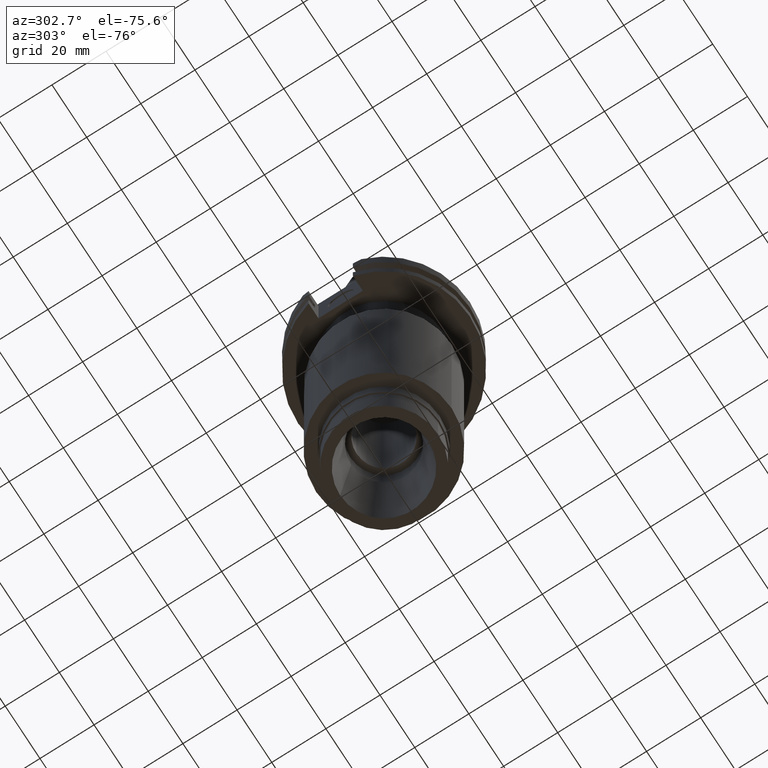
[diagram: clean part render]
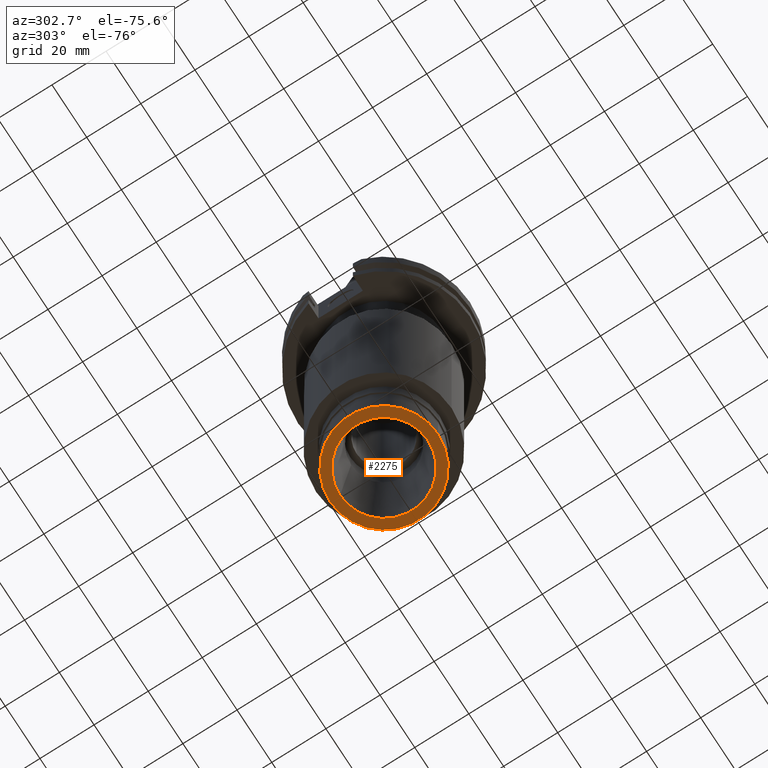
[diagram: same view with one face highlighted and labeled with its STEP entity id]
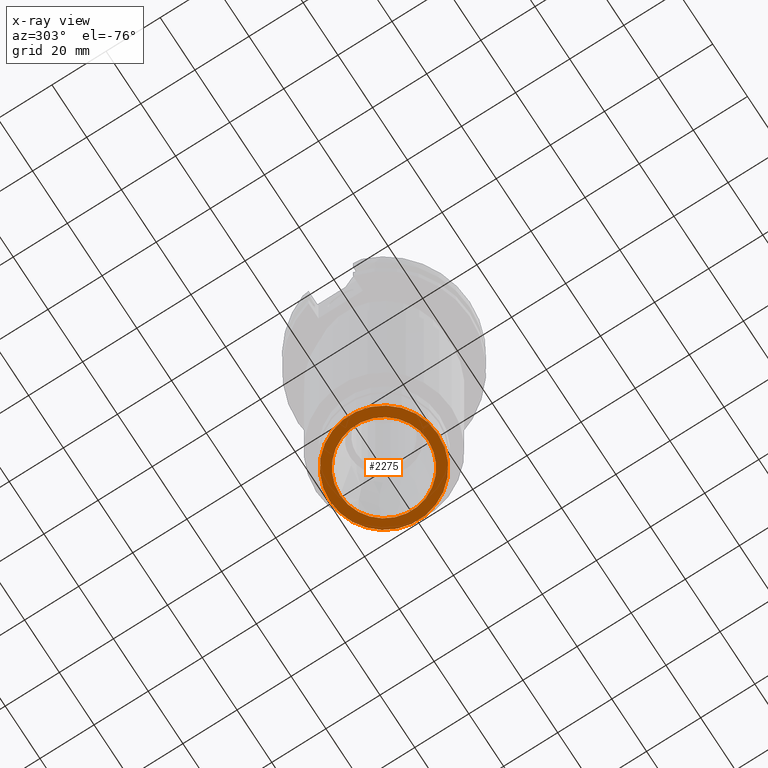
[diagram: x-ray of the same camera — body ghosted, the highlighted face saturated]
A machine part, auxiliary view. The second image highlights one B-rep face of the part: STEP entity #2275.
The next image is the same camera in x-ray: the body ghosted, the highlighted face saturated — about 0% of this face is hidden behind the body in this view.
In plain terms, the highlighted planar face has unit normal (0, 0, -1).
Its self-contained STEP definition (entity closure, byte-faithful):
#1014=CARTESIAN_POINT('',(0.E0,2.188841840286E-14,-1.414E2));
#1015=DIRECTION('',(0.E0,0.E0,1.E0));
#1016=DIRECTION('',(0.E0,-1.E0,0.E0));
#1017=AXIS2_PLACEMENT_3D('',#1014,#1015,#1016);
#1022=CARTESIAN_POINT('',(0.E0,2.188841840286E-14,-1.414E2));
#1023=DIRECTION('',(0.E0,0.E0,1.E0));
#1024=DIRECTION('',(0.E0,1.E0,0.E0));
#1025=AXIS2_PLACEMENT_3D('',#1022,#1023,#1024);
#1030=CARTESIAN_POINT('',(0.E0,0.E0,-1.414E2));
#1031=DIRECTION('',(0.E0,0.E0,-1.E0));
#1032=DIRECTION('',(0.E0,-1.E0,0.E0));
#1033=AXIS2_PLACEMENT_3D('',#1030,#1031,#1032);
#1038=CARTESIAN_POINT('',(0.E0,0.E0,-1.414E2));
#1039=DIRECTION('',(0.E0,0.E0,-1.E0));
#1040=DIRECTION('',(0.E0,1.E0,0.E0));
#1041=AXIS2_PLACEMENT_3D('',#1038,#1039,#1040);
#1318=CARTESIAN_POINT('',(0.E0,1.625002214494E1,-1.414E2));
#1319=VERTEX_POINT('',#1318);
#1320=CARTESIAN_POINT('',(0.E0,-1.625002214494E1,-1.414E2));
#1321=VERTEX_POINT('',#1320);
#1322=CARTESIAN_POINT('',(0.E0,-2.E1,-1.414E2));
#1323=CARTESIAN_POINT('',(0.E0,2.E1,-1.414E2));
#1324=VERTEX_POINT('',#1322);
#1325=VERTEX_POINT('',#1323);
#2260=CARTESIAN_POINT('',(0.E0,0.E0,-1.414E2));
#2261=DIRECTION('',(0.E0,0.E0,-1.E0));
#2262=DIRECTION('',(0.E0,-1.E0,0.E0));
#2263=AXIS2_PLACEMENT_3D('',#2260,#2261,#2262);
#2264=PLANE('',#2263);
#2265=ORIENTED_EDGE('',*,*,#2253,.T.);
#2266=ORIENTED_EDGE('',*,*,#2242,.T.);
#2267=EDGE_LOOP('',(#2265,#2266));
#2268=FACE_OUTER_BOUND('',#2267,.F.);
#2270=ORIENTED_EDGE('',*,*,#2269,.T.);
#2272=ORIENTED_EDGE('',*,*,#2271,.T.);
#2273=EDGE_LOOP('',(#2270,#2272));
#2274=FACE_BOUND('',#2273,.F.);
#1018=CIRCLE('',#1017,2.E1);
#1026=CIRCLE('',#1025,2.E1);
#1034=CIRCLE('',#1033,1.625002214493E1);
#1042=CIRCLE('',#1041,1.625002214493E1);
#2242=EDGE_CURVE('',#1325,#1324,#1026,.T.);
#2253=EDGE_CURVE('',#1324,#1325,#1018,.T.);
#2269=EDGE_CURVE('',#1321,#1319,#1034,.T.);
#2271=EDGE_CURVE('',#1319,#1321,#1042,.T.);
#2275=ADVANCED_FACE('',(#2268,#2274),#2264,.T.);